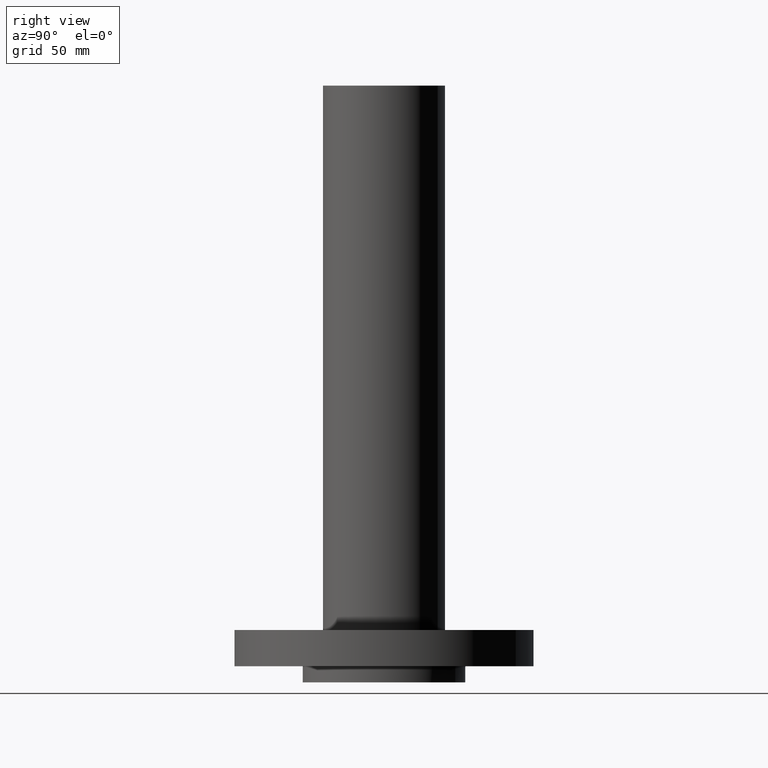
[diagram: clean part render]
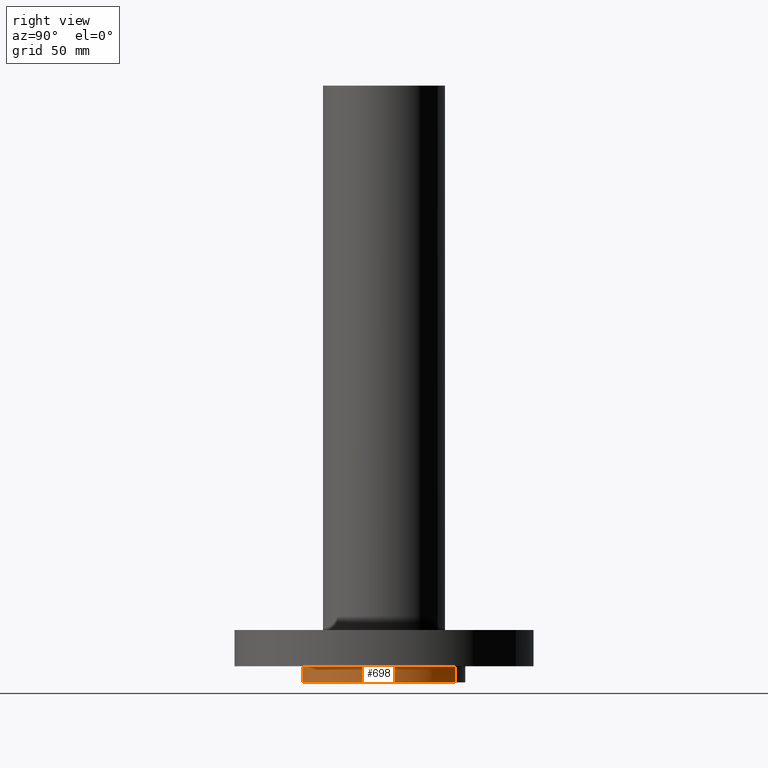
[diagram: same view with one face highlighted and labeled with its STEP entity id]
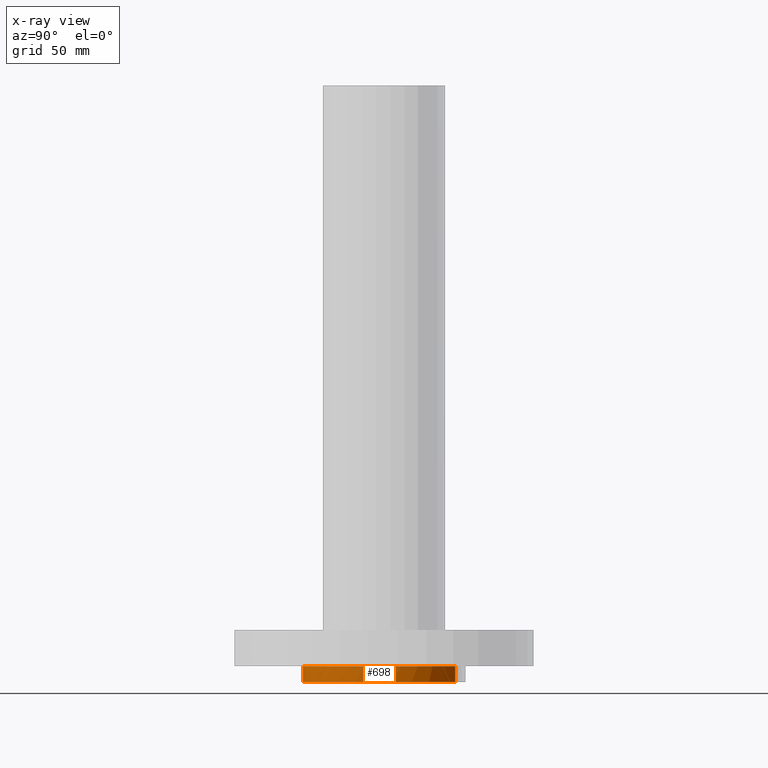
[diagram: x-ray of the same camera — body ghosted, the highlighted face saturated]
A machine part, right view. The second image highlights one B-rep face of the part: STEP entity #698.
The next image is the same camera in x-ray: the body ghosted, the highlighted face saturated — about 0% of this face is hidden behind the body in this view.
In plain terms, the highlighted cylindrical surface (partial cylindrical patch) has radius 31.75 mm, axis along (0, 0, -1).
Its self-contained STEP definition (entity closure, byte-faithful):
#133=AXIS2_PLACEMENT_3D('Circle Axis2P3D',#131,#132,$) ;
#140=AXIS2_PLACEMENT_3D('Circle Axis2P3D',#138,#139,$) ;
#147=AXIS2_PLACEMENT_3D('Circle Axis2P3D',#145,#146,$) ;
#654=AXIS2_PLACEMENT_3D('Circle Axis2P3D',#652,#653,$) ;
#669=AXIS2_PLACEMENT_3D('Cylinder Axis2P3D',#666,#667,#668) ;
#128=CARTESIAN_POINT('Vertex',(-0.599281923258,-1.09697820237,0.)) ;
#131=CARTESIAN_POINT('Axis2P3D Location',(0.,0.,0.)) ;
#135=CARTESIAN_POINT('Vertex',(-1.73789345409E-016,-1.25000000001,0.)) ;
#138=CARTESIAN_POINT('Axis2P3D Location',(0.,0.,0.)) ;
#142=CARTESIAN_POINT('Vertex',(1.25000000001,-1.91428434947E-015,0.)) ;
#145=CARTESIAN_POINT('Axis2P3D Location',(0.,0.,0.)) ;
#149=CARTESIAN_POINT('Vertex',(0.599281923258,1.09697820237,0.)) ;
#647=CARTESIAN_POINT('Vertex',(-0.599281923258,-1.09697820237,-0.250000000001)) ;
#649=CARTESIAN_POINT('Vertex',(0.599281923258,1.09697820237,-0.250000000001)) ;
#652=CARTESIAN_POINT('Axis2P3D Location',(0.,0.,-0.250000000001)) ;
#666=CARTESIAN_POINT('Axis2P3D Location',(0.,0.,4.34375000002)) ;
#671=CARTESIAN_POINT('Line Origine',(-0.599281923258,-1.09697820237,-0.125000000001)) ;
#676=CARTESIAN_POINT('Line Origine',(0.599281923258,1.09697820237,-0.125000000001)) ;
#132=DIRECTION('Axis2P3D Direction',(0.,0.,-0.0393700787402)) ;
#139=DIRECTION('Axis2P3D Direction',(0.,0.,-0.0393700787402)) ;
#146=DIRECTION('Axis2P3D Direction',(0.,0.,-0.0393700787402)) ;
#653=DIRECTION('Axis2P3D Direction',(0.,0.,-0.0393700787402)) ;
#667=DIRECTION('Axis2P3D Direction',(0.,0.,-0.0393700787402)) ;
#668=DIRECTION('Axis2P3D XDirection',(0.0188750212049,0.0345504945626,0.)) ;
#672=DIRECTION('Vector Direction',(0.,0.,-0.0393700787402)) ;
#677=DIRECTION('Vector Direction',(0.,0.,-0.0393700787402)) ;
#673=VECTOR('Line Direction',#672,0.0393700787402) ;
#678=VECTOR('Line Direction',#677,0.0393700787402) ;
#691=ORIENTED_EDGE('',*,*,#656,.F.) ;
#692=ORIENTED_EDGE('',*,*,#680,.T.) ;
#693=ORIENTED_EDGE('',*,*,#151,.T.) ;
#694=ORIENTED_EDGE('',*,*,#144,.T.) ;
#695=ORIENTED_EDGE('',*,*,#137,.T.) ;
#696=ORIENTED_EDGE('',*,*,#675,.F.) ;
#698=ADVANCED_FACE('PartBody',(#697),#670,.T.) ;
#134=CIRCLE('generated circle',#133,1.25000000001) ;
#141=CIRCLE('generated circle',#140,1.25000000001) ;
#148=CIRCLE('generated circle',#147,1.25000000001) ;
#655=CIRCLE('generated circle',#654,1.25000000001) ;
#670=CYLINDRICAL_SURFACE('generated cylinder',#669,1.25000000001) ;
#137=EDGE_CURVE('',#136,#129,#134,.T.) ;
#144=EDGE_CURVE('',#143,#136,#141,.T.) ;
#151=EDGE_CURVE('',#150,#143,#148,.T.) ;
#656=EDGE_CURVE('',#650,#648,#655,.T.) ;
#675=EDGE_CURVE('',#648,#129,#674,.F.) ;
#680=EDGE_CURVE('',#650,#150,#679,.F.) ;
#690=EDGE_LOOP('',(#691,#692,#693,#694,#695,#696)) ;
#697=FACE_OUTER_BOUND('',#690,.T.) ;
#674=LINE('Line',#671,#673) ;
#679=LINE('Line',#676,#678) ;
#129=VERTEX_POINT('',#128) ;
#136=VERTEX_POINT('',#135) ;
#143=VERTEX_POINT('',#142) ;
#150=VERTEX_POINT('',#149) ;
#648=VERTEX_POINT('',#647) ;
#650=VERTEX_POINT('',#649) ;